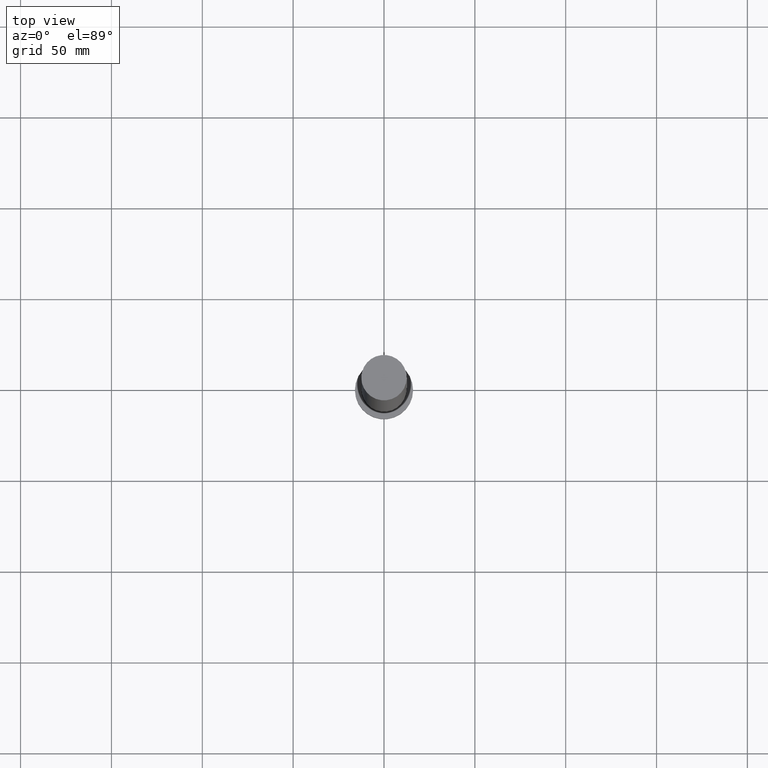
[diagram: clean part render]
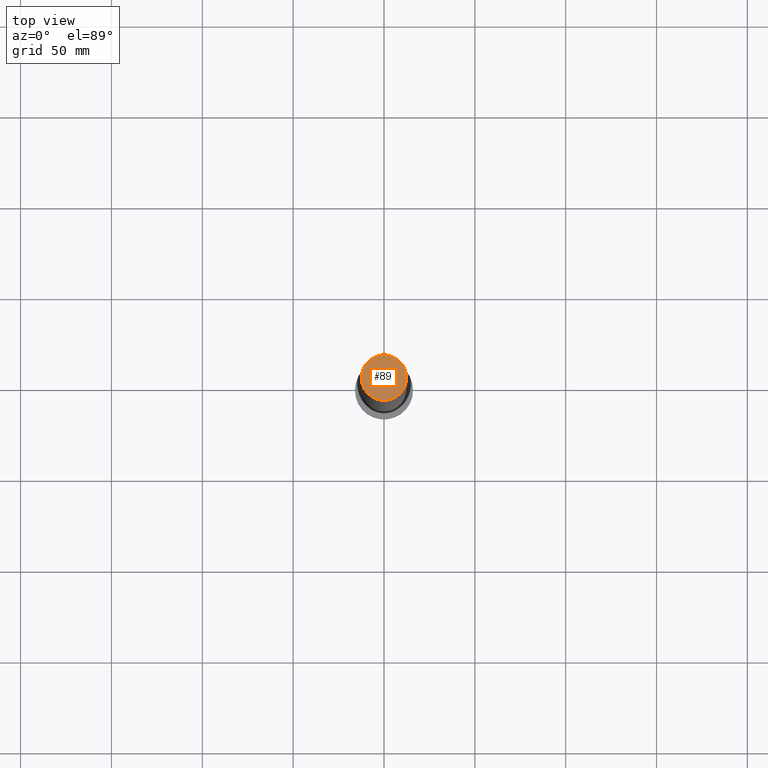
[diagram: same view with one face highlighted and labeled with its STEP entity id]
A machine part, top view. The second image highlights one B-rep face of the part: STEP entity #89.
In plain terms, the highlighted planar face has unit normal (0, 0, 1).
Its self-contained STEP definition (entity closure, byte-faithful):
#6 = DIRECTION ( 'NONE',  ( 1.000000000000000000, 0.000000000000000000, -0.000000000000000000 ) ) ;
#15 = DIRECTION ( 'NONE',  ( 1.000000000000000000, 0.000000000000000000, 0.000000000000000000 ) ) ;
#24 = CARTESIAN_POINT ( 'NONE',  ( 0.000000000000000000, 0.000000000000000000, 400.0000000000000000 ) ) ;
#25 = VERTEX_POINT ( 'NONE', #170 ) ;
#43 = FACE_OUTER_BOUND ( 'NONE', #139, .T. ) ;
#49 = ORIENTED_EDGE ( 'NONE', *, *, #161, .T. ) ;
#50 = DIRECTION ( 'NONE',  ( 1.000000000000000000, 0.000000000000000000, 0.000000000000000000 ) ) ;
#72 = CARTESIAN_POINT ( 'NONE',  ( -12.50000000000000000, 0.000000000000000000, 400.0000000000000000 ) ) ;
#84 = ORIENTED_EDGE ( 'NONE', *, *, #134, .T. ) ;
#89 = ADVANCED_FACE ( 'NONE', ( #43 ), #229, .T. ) ;
#94 = CIRCLE ( 'NONE', #234, 12.50000000000000000 ) ;
#99 = AXIS2_PLACEMENT_3D ( 'NONE', #152, #235, #15 ) ;
#112 = DIRECTION ( 'NONE',  ( 0.000000000000000000, 0.000000000000000000, 1.000000000000000000 ) ) ;
#134 = EDGE_CURVE ( 'NONE', #25, #248, #94, .T. ) ;
#139 = EDGE_LOOP ( 'NONE', ( #49, #84 ) ) ;
#152 = CARTESIAN_POINT ( 'NONE',  ( 0.000000000000000000, 0.000000000000000000, 400.0000000000000000 ) ) ;
#161 = EDGE_CURVE ( 'NONE', #248, #25, #204, .T. ) ;
#170 = CARTESIAN_POINT ( 'NONE',  ( 12.50000000000000000, 1.530808498934191521E-15, 400.0000000000000000 ) ) ;
#173 = CARTESIAN_POINT ( 'NONE',  ( 0.000000000000000000, 0.000000000000000000, 400.0000000000000000 ) ) ;
#185 = DIRECTION ( 'NONE',  ( 0.000000000000000000, 0.000000000000000000, 1.000000000000000000 ) ) ;
#202 = AXIS2_PLACEMENT_3D ( 'NONE', #24, #185, #6 ) ;
#204 = CIRCLE ( 'NONE', #99, 12.50000000000000000 ) ;
#229 = PLANE ( 'NONE',  #202 ) ;
#234 = AXIS2_PLACEMENT_3D ( 'NONE', #173, #112, #50 ) ;
#235 = DIRECTION ( 'NONE',  ( 0.000000000000000000, 0.000000000000000000, 1.000000000000000000 ) ) ;
#248 = VERTEX_POINT ( 'NONE', #72 ) ;